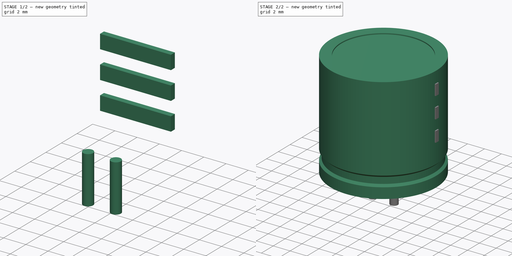
[diagram: build sequence overview — one tinted view per stage of 2, left to right]
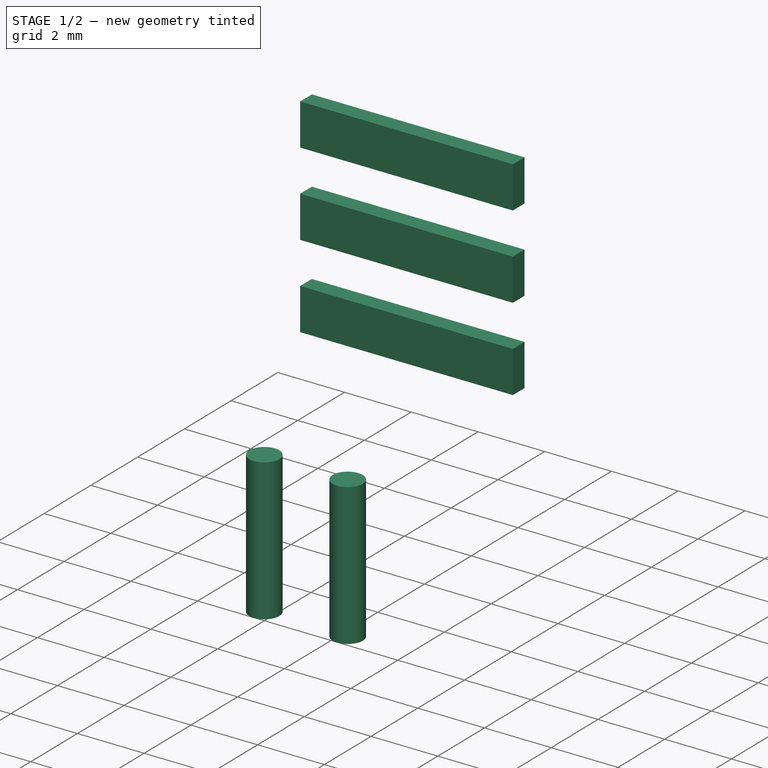
[diagram: stage 1 of 2 — iso view after this stage's code; geometry added in this stage tinted green]
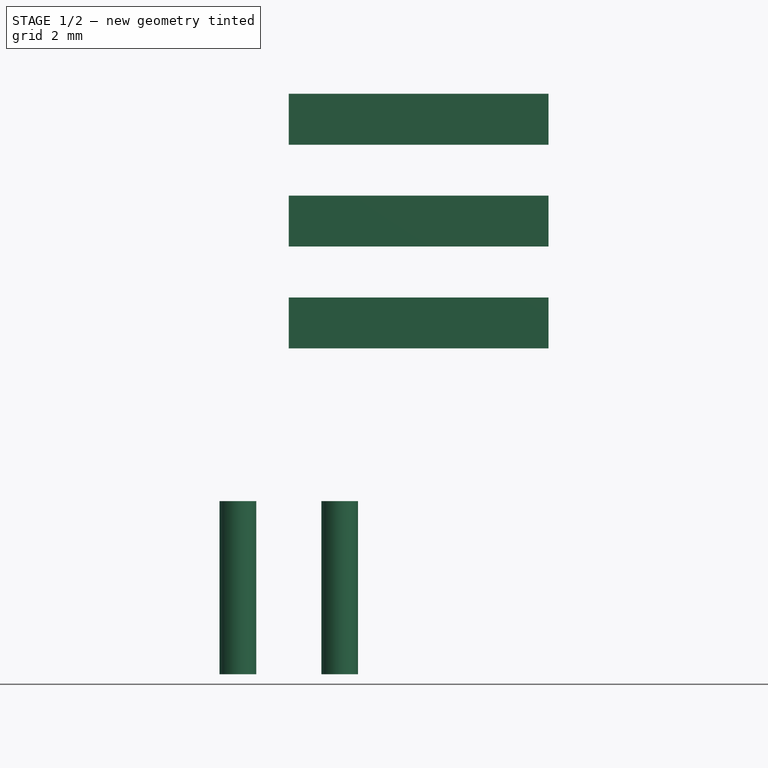
[diagram: stage 1 of 2 — front view after this stage's code; geometry added in this stage tinted green]
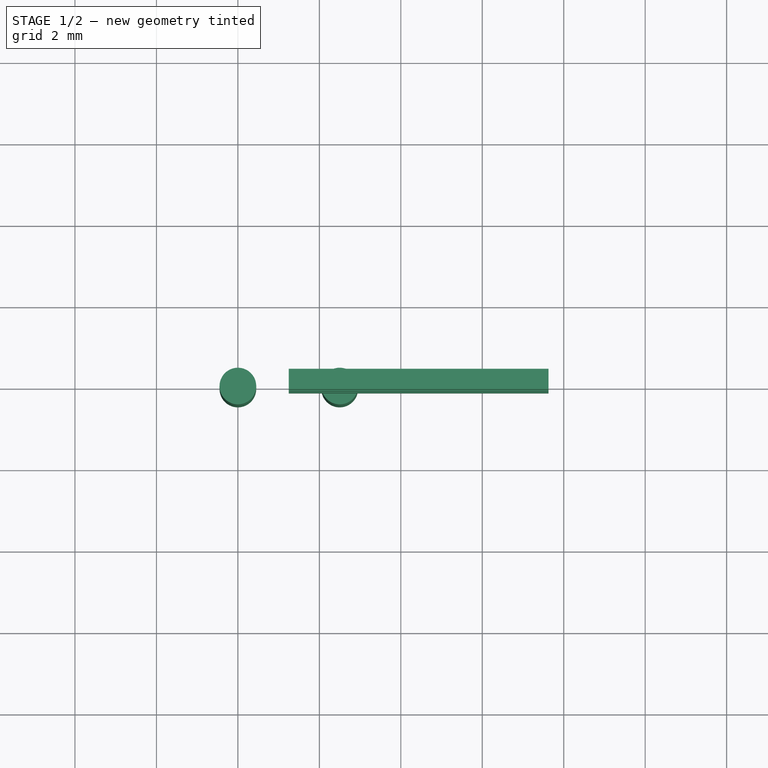
[diagram: stage 1 of 2 — top view after this stage's code; geometry added in this stage tinted green]
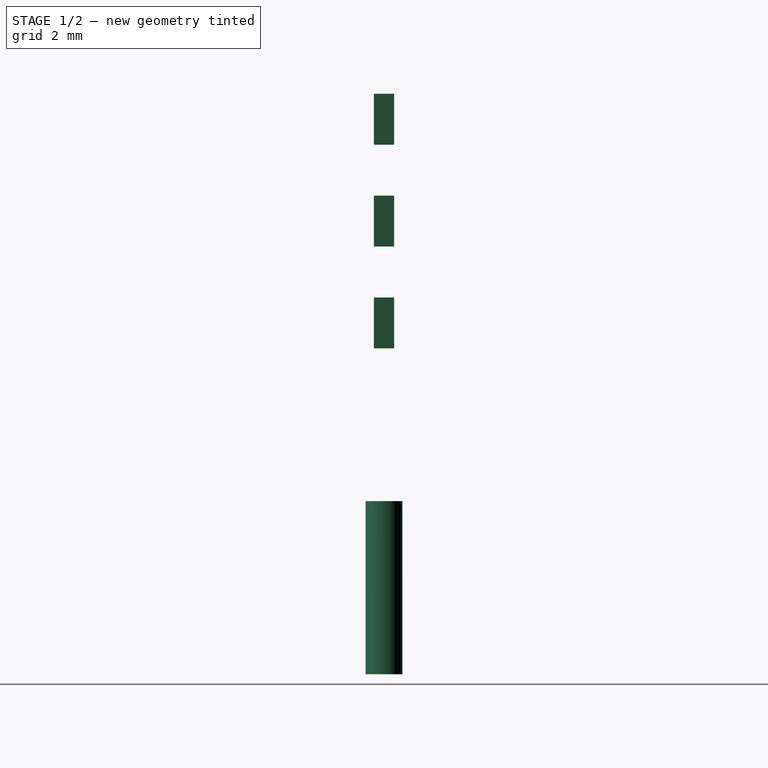
[diagram: stage 1 of 2 — right view after this stage's code; geometry added in this stage tinted green]
FCSTD DOCUMENT  (FreeCAD 0.16R6703 (Git))
Label: CP_Radial_D12.5mm_P2.50mm
License: All rights reserved
LicenseURL: http://en.wikipedia.org/wiki/All_rights_reserved
objects: Sketcher::SketchObject×5, PartDesign::Revolution×2, PartDesign::Pad×2, Spreadsheet::Sheet×1
note: 13 computed .brp shape members not serialized (recipe doc carries the construction recipe); baked Part::Feature solids carry a one-line shape summary decoded from their .brp

FEATURE [Sketcher::SketchObject] Sketch003
  Placement = pos=(0,0,1.25) rot=(0,0,1;0rad)
  expr: Constraints[4] = dimensions.d_wire / 2
  expr: Constraints[2] = dimensions.RM
  expr: Constraints[5] = dimensions.d_wire / 2
  expr: Placement.Base.z = dimensions.L * 0.1
  sketch-geometry (2):
    g0: Circle CenterX=0 CenterY=0 CenterZ=0 NormalX=0 NormalY=0 NormalZ=1 Radius=0.45
    g1: Circle CenterX=2.5 CenterY=0 CenterZ=0 NormalX=0 NormalY=0 NormalZ=1 Radius=0.45
  constraints (6):
    c: PointOnObject(g0,g-1)
    c: PointOnObject(g1,g-1)
    c: DistanceX(g0,g1) = 2.5
    c: Coincident(g0,g-1)
    c: Radius(g0) = 0.45
    c: Radius(g1) = 0.45
FEATURE [PartDesign::Pad] Pad
  Length = 4.25
  Length2 = 100
  Placement = pos=(0,0,1.25) rot=(0,0,1;0rad)
  Reversed = true
  Sketch = -> Sketch003
  Type = 0
  expr: Length = dimensions.L * 0.1 + 3
FEATURE [Sketcher::SketchObject] Sketch004
  Placement = pos=(1.25,0,0) rot=(0.57735,0.57735,0.57735;2.0944rad)
  expr: Placement.Base.x = dimensions.RM / 2
  expr: Constraints[35] = dimensions.L * 0.9
  expr: Constraints[32] = dimensions.L * 0.04 / 2
  expr: Constraints[29] = dimensions.L * 0.04
  expr: Constraints[30] = dimensions.L * 0.04
  expr: Constraints[27] = dimensions.L * 0.1
  expr: Constraints[28] = dimensions.L * 0.1
  expr: Constraints[26] = dimensions.L * 0.1
  expr: Constraints[25] = dimensions.L * 0.1
  expr: Constraints[31] = dimensions.L * 0.04
  expr: Constraints[24] = dimensions.L * 0.1
  sketch-geometry (12):
    g0: LineSegment StartX=-0.25 StartY=6.25 StartZ=0 EndX=0.25 EndY=6.25 EndZ=0
    g1: LineSegment StartX=0.25 StartY=6.25 StartZ=0 EndX=0.25 EndY=5 EndZ=0
    g2: LineSegment StartX=0.25 StartY=5 StartZ=0 EndX=-0.25 EndY=5 EndZ=0
    g3: LineSegment StartX=-0.25 StartY=5 StartZ=0 EndX=-0.25 EndY=6.25 EndZ=0
    g4: LineSegment StartX=-0.25 StartY=8.75 StartZ=0 EndX=0.25 EndY=8.75 EndZ=0
    g5: LineSegment StartX=0.25 StartY=8.75 StartZ=0 EndX=0.25 EndY=7.5 EndZ=0
    g6: LineSegment StartX=0.25 StartY=7.5 StartZ=0 EndX=-0.25 EndY=7.5 EndZ=0
    g7: LineSegment StartX=-0.25 StartY=7.5 StartZ=0 EndX=-0.25 EndY=8.75 EndZ=0
    g8: LineSegment StartX=0.25 StartY=10 StartZ=0 EndX=-0.25 EndY=10 EndZ=0
    g9: LineSegment StartX=-0.25 StartY=10 StartZ=0 EndX=-0.25 EndY=11.25 EndZ=0
    g10: LineSegment StartX=-0.25 StartY=11.25 StartZ=0 EndX=0.25 EndY=11.25 EndZ=0
    g11: LineSegment StartX=0.25 StartY=11.25 StartZ=0 EndX=0.25 EndY=10 EndZ=0
  constraints (36):
    c: Coincident(g0,g1)
    c: Coincident(g1,g2)
    c: Coincident(g2,g3)
    c: Coincident(g3,g0)
    c: Horizontal(g0)
    c: Horizontal(g2)
    c: Vertical(g1)
    c: Vertical(g3)
    c: Coincident(g4,g5)
    c: Coincident(g5,g6)
    c: Coincident(g6,g7)
    c: Coincident(g7,g4)
    c: Horizontal(g4)
    c: Horizontal(g6)
    c: Vertical(g5)
    c: Vertical(g7)
    c: Coincident(g8,g9)
    c: Coincident(g9,g10)
    c: Coincident(g10,g11)
    c: Coincident(g11,g8)
    c: Horizontal(g8)
    c: Horizontal(g10)
    c: Vertical(g9)
    c: Vertical(g11)
    c: DistanceY(g11,g11) = 1.25
    c: DistanceY(g4,g8) = 1.25
    c: DistanceY(g0,g5) = 1.25
    c: DistanceY(g1,g1) = 1.25
    c: DistanceY(g5,g5) = 1.25
    c: DistanceX(g2,g2) = 0.5
    c: DistanceX(g6,g6) = 0.5
    c: DistanceX(g8,g8) = 0.5
    c: DistanceX(g2,g-1) = 0.25
    c: DistanceX(g0,g6) = 0
    c: DistanceX(g4,g8) = 0
    c: DistanceY(g-1,g9) = 11.25
FEATURE [PartDesign::Pad] Pad001
  Length = 6.375
  Length2 = 100
  Placement = pos=(1.25,0,0) rot=(0.57735,0.57735,0.57735;2.0944rad)
  Sketch = -> Sketch004
  Type = 0
  expr: Length = dimensions.d * 0.51
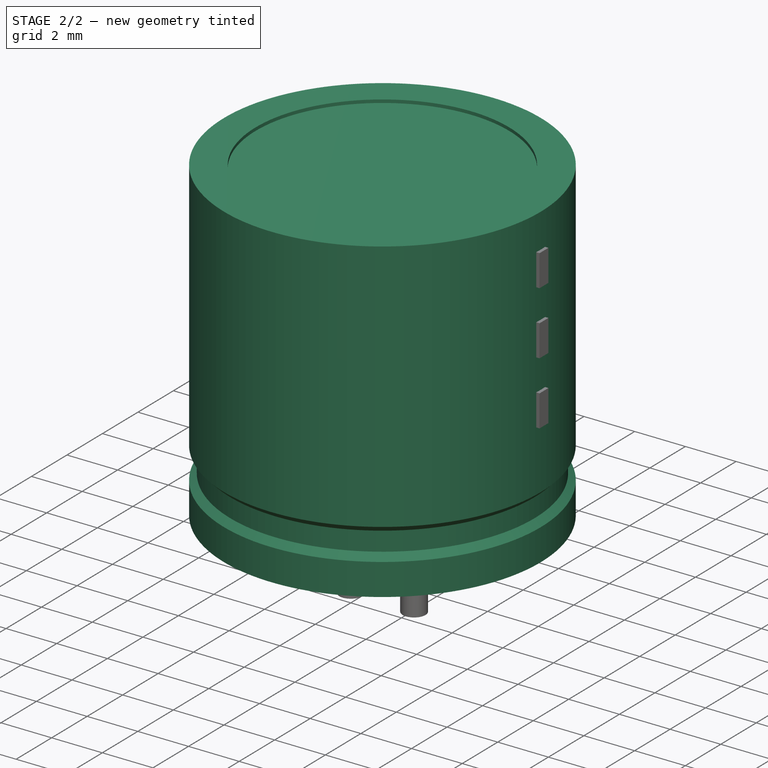
[diagram: stage 2 of 2 — iso view after this stage's code; geometry added in this stage tinted green]
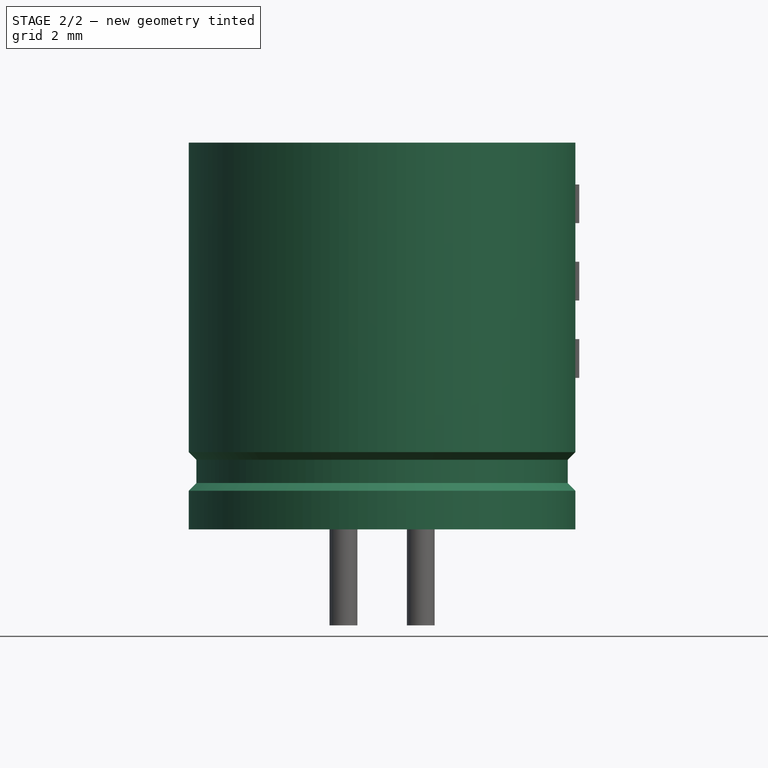
[diagram: stage 2 of 2 — front view after this stage's code; geometry added in this stage tinted green]
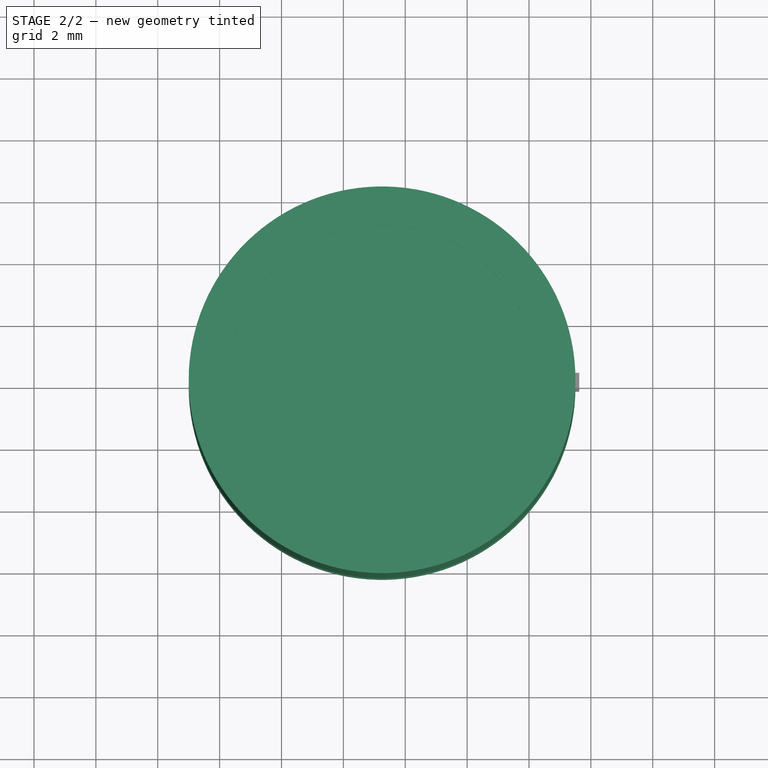
[diagram: stage 2 of 2 — top view after this stage's code; geometry added in this stage tinted green]
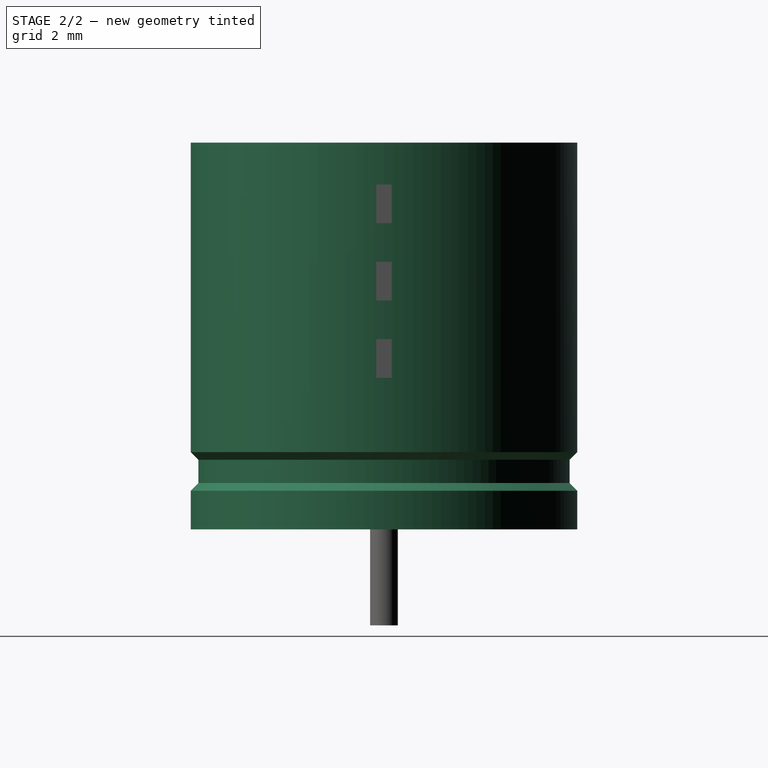
[diagram: stage 2 of 2 — right view after this stage's code; geometry added in this stage tinted green]
FEATURE [Sketcher::SketchObject] Sketch001
  Placement = pos=(0,0,0) rot=(1,0,0;1.5708rad)
  expr: Constraints[15] = dimensions.d_wire
  expr: Constraints[20] = dimensions.d_wire
  expr: Constraints[18] = dimensions.d / 2 + 0.1
  expr: Constraints[12] = dimensions.RM
  expr: Constraints[7] = dimensions.d_wire
  sketch-geometry (7):
    g0: LineSegment StartX=0 StartY=-3 StartZ=0 EndX=0 EndY=7.25 EndZ=0
    g1: ArcOfCircle CenterX=0.9 CenterY=7.25 CenterZ=0 NormalX=0 NormalY=0 NormalZ=1 Radius=0.9 StartAngle=4.7124 EndAngle=9.42478
    g2: LineSegment [constr] StartX=0 StartY=7.25 StartZ=0 EndX=0.9 EndY=7.25 EndZ=0
    g3: LineSegment [constr] StartX=0.9 StartY=7.25 StartZ=0 EndX=0.9 EndY=8.15 EndZ=0
    g4: LineSegment StartX=0.900009 StartY=6.35 StartZ=0 EndX=1.6 EndY=6.35 EndZ=0
    g5: LineSegment StartX=2.5 StartY=7.25 StartZ=0 EndX=2.5 EndY=-3 EndZ=0
    g6: ArcOfCircle CenterX=1.6 CenterY=7.25 CenterZ=0 NormalX=0 NormalY=0 NormalZ=1 Radius=0.9 StartAngle=0 EndAngle=4.71239
  constraints (23):
    c: Vertical(g0)
    c: Coincident(g1,g0)
    c: Coincident(g2,g0)
    c: Coincident(g2,g1)
    c: Horizontal(g2)
    c: Coincident(g3,g1)
    c: Vertical(g3)
    c: DistanceY(g3,g3) = 0.9
    c: Coincident(g4,g1)
    c: Horizontal(g4)
    c: Vertical(g5)
    c: Equal(g5,g0)
    c: DistanceX(g-1,g5) = 2.5
    c: Coincident(g6,g4)
    c: Coincident(g6,g5)
    c: DistanceX(g6,g5) = 0.9
    c: PointOnObject(g0,g-2)
    c: DistanceY(g0,g-1) = 3
    c: DistanceY(g-1,g1) = 6.35
    c: DistanceY(g0,g5) = 0
    c: DistanceX(g0,g1) = 0.9
    c: DistanceX(g6,g4) = 0
    c: DistanceY(g6,g5) = 0
FEATURE [Spreadsheet::Sheet] Spreadsheet  label="dimensions"
  cells = A1=L; B1(L)=12.5; A2=d; B2(d)=12.5; C2=0; A3=RM; B3(RM)=2.5; C3=0; A4=d_wire; B4(d_wire)=0.8999999999999999; B5=16; B6=5
FEATURE [Sketcher::SketchObject] Sketch
  Placement = pos=(0,0,0) rot=(1,0,0;1.5708rad)
  expr: Constraints[10] = dimensions.L * 0.02
  expr: Constraints[13] = dimensions.d / 2
  expr: Constraints[11] = dimensions.L * 0.02
  expr: Constraints[14] = dimensions.L
  expr: Constraints[24] = dimensions.RM / 2
  expr: Constraints[7] = dimensions.L * 0.1
  expr: Constraints[8] = dimensions.L * 0.1
  expr: Constraints[9] = dimensions.d * 0.02
  expr: Constraints[22] = dimensions.d * 0.1
  sketch-geometry (9):
    g0: LineSegment StartX=-5 StartY=0.1 StartZ=0 EndX=-5 EndY=1.35 EndZ=0
    g1: LineSegment StartX=-5 StartY=1.35 StartZ=0 EndX=-4.75 EndY=1.6 EndZ=0
    g2: LineSegment StartX=-4.75 StartY=1.6 StartZ=0 EndX=-4.75 EndY=2.35 EndZ=0
    g3: LineSegment StartX=-4.75 StartY=2.35 StartZ=0 EndX=-5 EndY=2.6 EndZ=0
    g4: LineSegment StartX=-5 StartY=2.6 StartZ=0 EndX=-5 EndY=12.6 EndZ=0
    g5: LineSegment [constr] StartX=1.25 StartY=7.54862 StartZ=0 EndX=1.25 EndY=-3.32871 EndZ=0
    g6: LineSegment StartX=-5 StartY=0.1 StartZ=0 EndX=-3.75 EndY=0.1 EndZ=0
    g7: LineSegment StartX=-3.75 StartY=0.1 StartZ=0 EndX=-3.75 EndY=12.6 EndZ=0
    g8: LineSegment StartX=-5 StartY=12.6 StartZ=0 EndX=-3.75 EndY=12.6 EndZ=0
  constraints (26):
    c: Vertical(g0)
    c: Coincident(g0,g1)
    c: Coincident(g2,g1)
    c: Vertical(g2)
    c: Coincident(g3,g2)
    c: Coincident(g4,g3)
    c: Vertical(g4)
    c: DistanceY(g0,g0) = 1.25
    c: DistanceY(g0,g3) = 1.25
    c: DistanceX(g0,g1) = 0.25
    c: DistanceY(g0,g1) = 0.25
    c: DistanceY(g2,g3) = 0.25
    c: Vertical(g5)
    c: DistanceX(g0,g5) = 6.25
    c: DistanceY(g0,g4) = 12.5
    c: Coincident(g6,g0)
    c: Horizontal(g6)
    c: Coincident(g7,g6)
    c: Vertical(g7)
    c: Coincident(g8,g4)
    c: Coincident(g8,g7)
    c: Horizontal(g8)
    c: DistanceX(g8,g8) = 1.25
    c: DistanceX(g3,g0) = 0
    c: DistanceX(g-1,g5) = 1.25
    c: DistanceY(g-1,g0) = 0.1
FEATURE [PartDesign::Revolution] Revolution
  Angle = 360
  Axis = (0,0,-10.8773)
  Base = (1.25,0,7.54862)
  Placement = pos=(0,0,0) rot=(1,0,0;1.5708rad)
  ReferenceAxis = -> Sketch [Axis0]
  Reversed = true
  Sketch = -> Sketch
FEATURE [Sketcher::SketchObject] Sketch002
  Placement = pos=(0,0,0) rot=(1,0,0;1.5708rad)
  expr: Constraints[13] = dimensions.RM / 2
  expr: Constraints[8] = 0.1 + 0.01 * dimensions.L
  expr: Constraints[9] = dimensions.L * 0.98
  expr: Constraints[10] = dimensions.d * 0.92 / 2
  sketch-geometry (5):
    g0: LineSegment StartX=-4.5 StartY=12.475 StartZ=0 EndX=1.25 EndY=12.475 EndZ=0
    g1: LineSegment StartX=1.25 StartY=12.475 StartZ=0 EndX=1.25 EndY=0.225 EndZ=0
    g2: LineSegment StartX=1.25 StartY=0.225 StartZ=0 EndX=-4.5 EndY=0.225 EndZ=0
    g3: LineSegment StartX=-4.5 StartY=0.225 StartZ=0 EndX=-4.5 EndY=12.475 EndZ=0
    g4: LineSegment [constr] StartX=1.25 StartY=4.68012 StartZ=0 EndX=1.25 EndY=-2.24064 EndZ=0
  constraints (14):
    c: Coincident(g0,g1)
    c: Coincident(g1,g2)
    c: Coincident(g2,g3)
    c: Coincident(g3,g0)
    c: Horizontal(g0)
    c: Horizontal(g2)
    c: Vertical(g1)
    c: Vertical(g3)
    c: DistanceY(g-1,g2) = 0.225
    c: DistanceY(g2,g0) = 12.25
    c: DistanceX(g0,g0) = 5.75
    c: PointOnObject(g4,g1)
    c: Vertical(g4)
    c: DistanceX(g-1,g1) = 1.25
FEATURE [PartDesign::Revolution] Revolution001
  Angle = 360
  Axis = (0,0,-6.92076)
  Base = (1.25,0,4.68012)
  Placement = pos=(0,0,0) rot=(1,0,0;1.5708rad)
  ReferenceAxis = -> Sketch002 [Axis0]
  Reversed = true
  Sketch = -> Sketch002
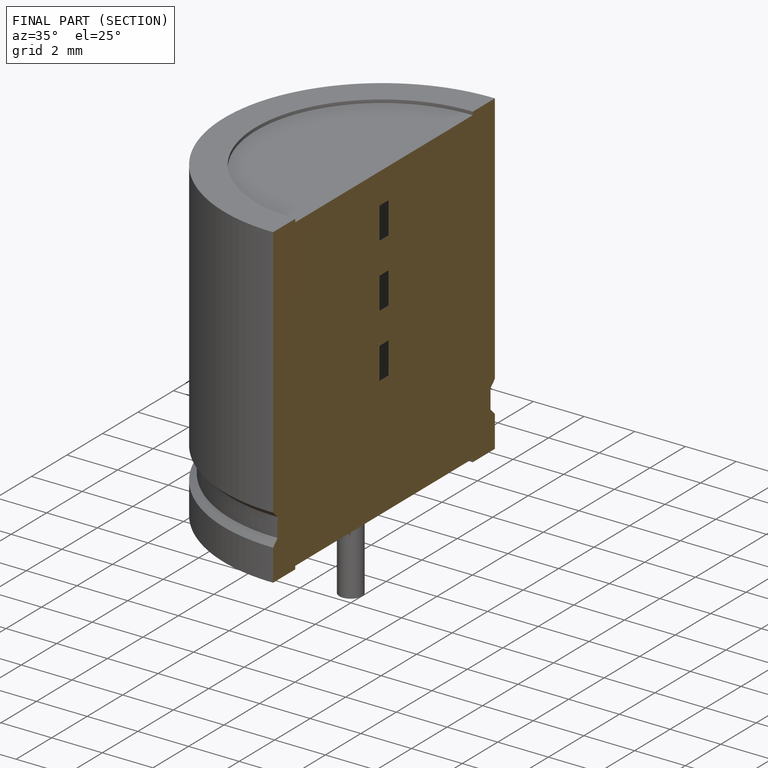
[diagram: finished part — half-section view (interior)]
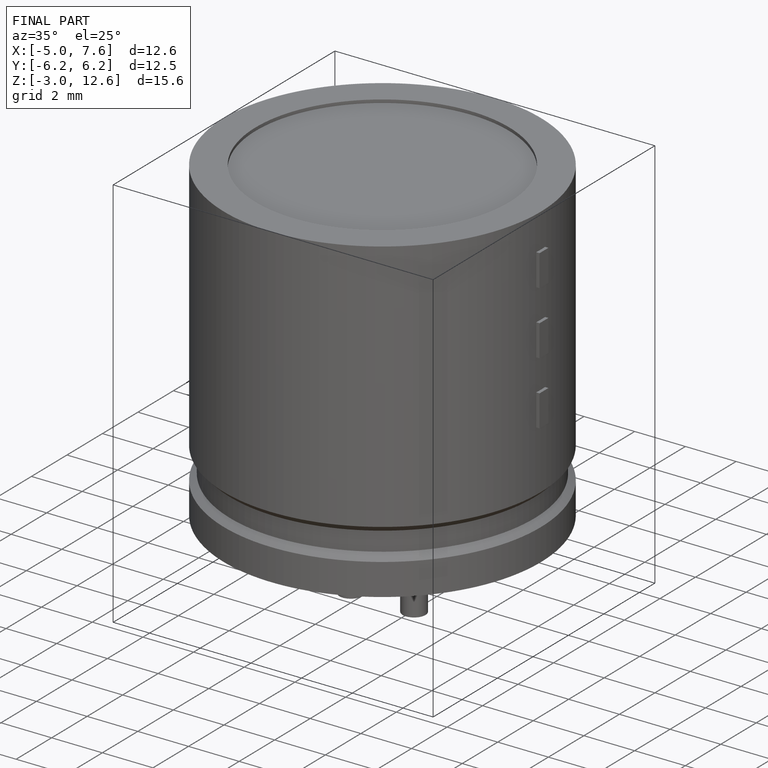
[diagram: finished part — iso view with bounding-box wireframe]
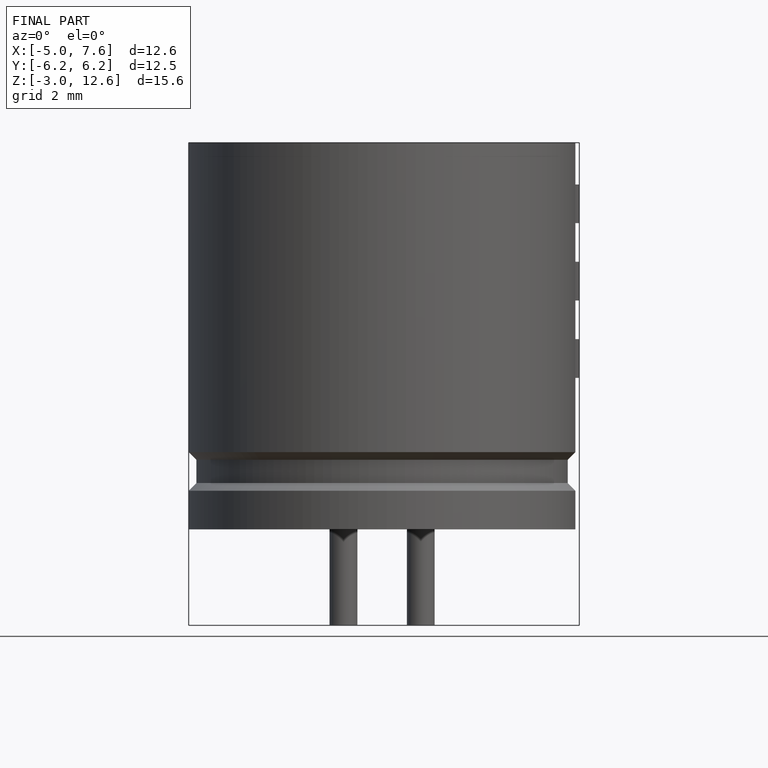
[diagram: finished part — front view with bounding-box wireframe]
